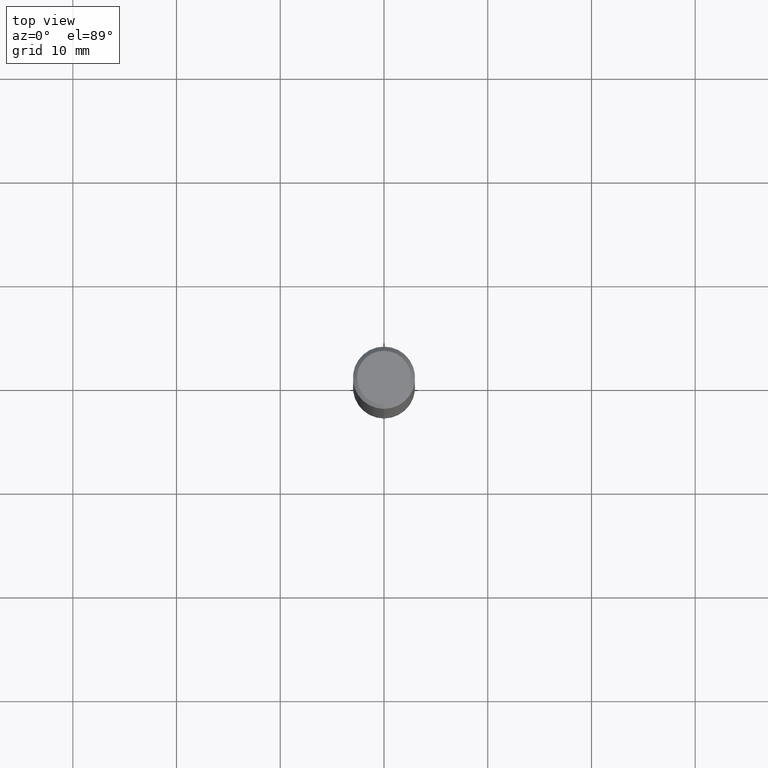
[diagram: clean part render]
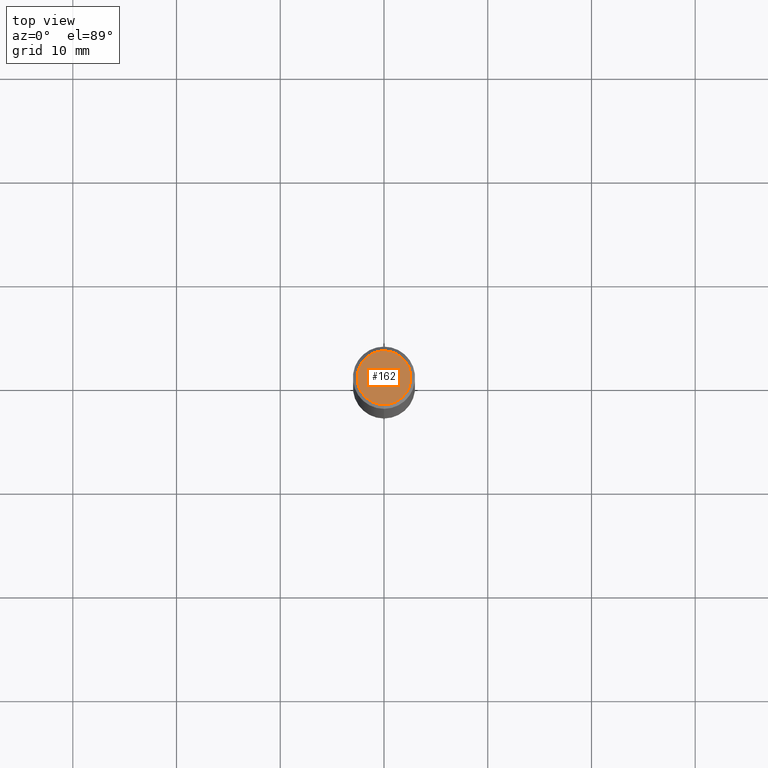
[diagram: same view with one face highlighted and labeled with its STEP entity id]
A machine part, top view. The second image highlights one B-rep face of the part: STEP entity #162.
In plain terms, the highlighted planar face has unit normal (-0, 0, 1).
Its self-contained STEP definition (entity closure, byte-faithful):
#126=EDGE_CURVE('',#140,#192,#265,.T.);
#140=VERTEX_POINT('',#280);
#162=ADVANCED_FACE('',(#306),#307,.T.);
#192=VERTEX_POINT('',#343);
#194=EDGE_CURVE('',#192,#140,#345,.T.);
#265=CIRCLE('',#424,2.6);
#280=CARTESIAN_POINT('',(0.0,2.6,0.0));
#306=FACE_OUTER_BOUND('',#473,.T.);
#307=PLANE('',#474);
#343=CARTESIAN_POINT('',(3.18397651993818E-016,-2.6,0.0));
#345=CIRCLE('',#524,2.6);
#424=AXIS2_PLACEMENT_3D('',#579,#580,#581);
#473=EDGE_LOOP('',(#633,#634));
#474=AXIS2_PLACEMENT_3D('',#635,#636,#637);
#524=AXIS2_PLACEMENT_3D('',#691,#692,#693);
#579=CARTESIAN_POINT('',(0.0,0.0,0.0));
#580=DIRECTION('',(0.0,0.0,-1.0));
#581=DIRECTION('',(0.0,1.0,0.0));
#633=ORIENTED_EDGE('',*,*,#126,.F.);
#634=ORIENTED_EDGE('',*,*,#194,.F.);
#635=CARTESIAN_POINT('',(0.0,1.3,0.0));
#636=DIRECTION('',(-0.0,0.0,1.0));
#637=DIRECTION('',(0.0,-1.0,0.0));
#691=CARTESIAN_POINT('',(0.0,0.0,0.0));
#692=DIRECTION('',(0.0,0.0,-1.0));
#693=DIRECTION('',(0.0,1.0,0.0));